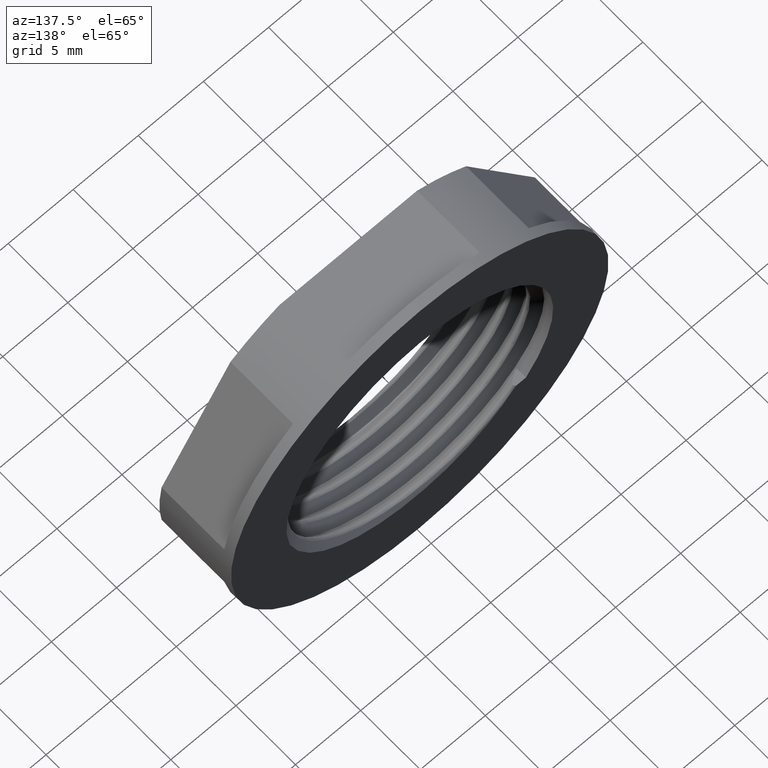
[diagram: clean part render]
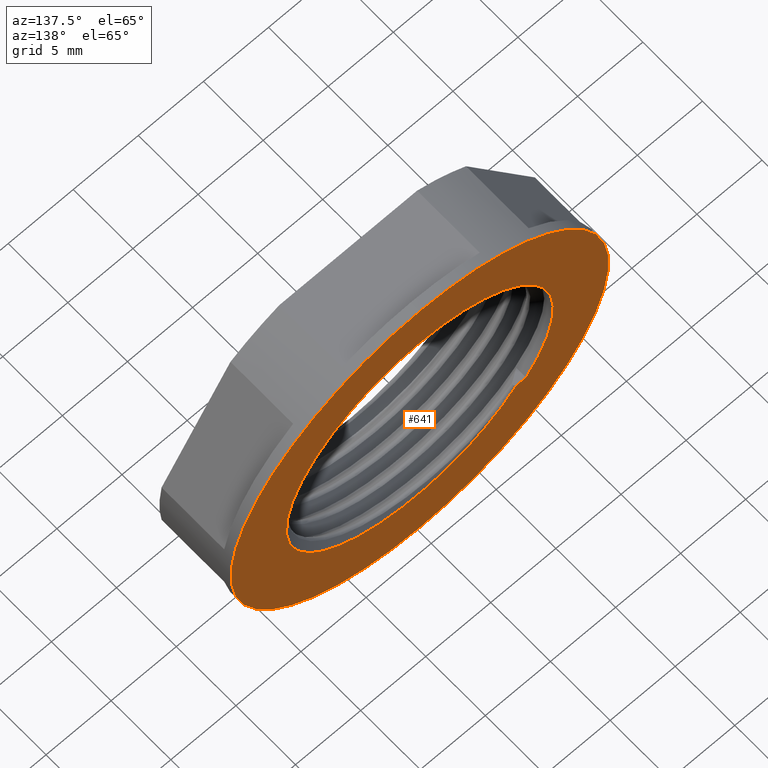
[diagram: same view with one face highlighted and labeled with its STEP entity id]
A machine part, auxiliary view. The second image highlights one B-rep face of the part: STEP entity #641.
In plain terms, the highlighted planar face has unit normal (0, -1, 0).
Its self-contained STEP definition (entity closure, byte-faithful):
#180 = PLANE ( 'NONE',  #1508 ) ;
#182 = FACE_OUTER_BOUND ( 'NONE', #666, .T. ) ;
#183 = DIRECTION ( 'NONE',  ( 0.0000000000000000000, -0.0000000000000000000, -1.000000000000000000 ) ) ;
#187 = CARTESIAN_POINT ( 'NONE',  ( 0.0000000000000000000, -10.95000000000000100, 10.25000000000000000 ) ) ;
#195 = CARTESIAN_POINT ( 'NONE',  ( 1.775737858763662000E-015, -10.95000000000000100, 14.50000000000000000 ) ) ;
#199 = DIRECTION ( 'NONE',  ( 0.0000000000000000000, -1.000000000000000000, 0.0000000000000000000 ) ) ;
#202 = FACE_BOUND ( 'NONE', #714, .T. ) ;
#206 = CARTESIAN_POINT ( 'NONE',  ( -8.162260716247670800, -10.95000000000000100, -6.200000000000003700 ) ) ;
#210 = CARTESIAN_POINT ( 'NONE',  ( 0.0000000000000000000, -10.95000000000000100, 0.0000000000000000000 ) ) ;
#244 = CARTESIAN_POINT ( 'NONE',  ( -7.404022937189631100, -10.95000000000000100, -6.200000000000002000 ) ) ;
#251 = CARTESIAN_POINT ( 'NONE',  ( 0.0000000000000000000, -10.95000000000000100, -14.50000000000000000 ) ) ;
#255 = CARTESIAN_POINT ( 'NONE',  ( 9.984966908751069100, -10.95000000000000100, -2.315801336718269300 ) ) ;
#539 = EDGE_CURVE ( 'NONE', #815, #739, #1426, .T. ) ;
#556 = EDGE_CURVE ( 'NONE', #755, #732, #1437, .T. ) ;
#568 = EDGE_CURVE ( 'NONE', #739, #815, #1464, .T. ) ;
#612 = EDGE_CURVE ( 'NONE', #762, #809, #2425, .T. ) ;
#614 = EDGE_CURVE ( 'NONE', #809, #755, #1751, .T. ) ;
#630 = EDGE_CURVE ( 'NONE', #732, #762, #1505, .T. ) ;
#641 = ADVANCED_FACE ( 'NONE', ( #182, #202 ), #180, .F. ) ;
#666 = EDGE_LOOP ( 'NONE', ( #886, #911 ) ) ;
#714 = EDGE_LOOP ( 'NONE', ( #893, #896, #877, #861 ) ) ;
#732 = VERTEX_POINT ( 'NONE', #187 ) ;
#739 = VERTEX_POINT ( 'NONE', #195 ) ;
#755 = VERTEX_POINT ( 'NONE', #206 ) ;
#762 = VERTEX_POINT ( 'NONE', #255 ) ;
#809 = VERTEX_POINT ( 'NONE', #244 ) ;
#815 = VERTEX_POINT ( 'NONE', #251 ) ;
#861 = ORIENTED_EDGE ( 'NONE', *, *, #614, .F. ) ;
#877 = ORIENTED_EDGE ( 'NONE', *, *, #556, .F. ) ;
#886 = ORIENTED_EDGE ( 'NONE', *, *, #539, .F. ) ;
#893 = ORIENTED_EDGE ( 'NONE', *, *, #612, .F. ) ;
#896 = ORIENTED_EDGE ( 'NONE', *, *, #630, .F. ) ;
#911 = ORIENTED_EDGE ( 'NONE', *, *, #568, .F. ) ;
#971 = CARTESIAN_POINT ( 'NONE',  ( 0.0000000000000000000, -10.95000000000000100, 0.0000000000000000000 ) ) ;
#988 = DIRECTION ( 'NONE',  ( 0.0000000000000000000, 0.0000000000000000000, -1.000000000000000000 ) ) ;
#998 = DIRECTION ( 'NONE',  ( -0.0000000000000000000, -1.000000000000000000, -0.0000000000000000000 ) ) ;
#1011 = DIRECTION ( 'NONE',  ( 0.0000000000000000000, 1.000000000000000000, 0.0000000000000000000 ) ) ;
#1013 = DIRECTION ( 'NONE',  ( 0.0000000000000000000, 0.0000000000000000000, 1.000000000000000000 ) ) ;
#1039 = CARTESIAN_POINT ( 'NONE',  ( 0.0000000000000000000, -10.95000000000000100, 0.0000000000000000000 ) ) ;
#1060 = DIRECTION ( 'NONE',  ( 0.0000000000000000000, 0.0000000000000000000, -1.000000000000000000 ) ) ;
#1063 = CARTESIAN_POINT ( 'NONE',  ( 0.0000000000000000000, -10.95000000000000100, 0.0000000000000000000 ) ) ;
#1091 = DIRECTION ( 'NONE',  ( -0.0000000000000000000, -1.000000000000000000, -0.0000000000000000000 ) ) ;
#1426 = CIRCLE ( 'NONE', #1431, 14.50000000000000000 ) ;
#1431 = AXIS2_PLACEMENT_3D ( 'NONE', #971, #998, #988 ) ;
#1437 = CIRCLE ( 'NONE', #1451, 10.25000000000000000 ) ;
#1451 = AXIS2_PLACEMENT_3D ( 'NONE', #1039, #1011, #1013 ) ;
#1464 = CIRCLE ( 'NONE', #1481, 14.50000000000000000 ) ;
#1481 = AXIS2_PLACEMENT_3D ( 'NONE', #1063, #1091, #1060 ) ;
#1505 = CIRCLE ( 'NONE', #1507, 10.25000000000000000 ) ;
#1507 = AXIS2_PLACEMENT_3D ( 'NONE', #1913, #1902, #1883 ) ;
#1508 = AXIS2_PLACEMENT_3D ( 'NONE', #210, #199, #183 ) ;
#1538 = VECTOR ( 'NONE', #1735, 1000.000000000000000 ) ;
#1715 = CARTESIAN_POINT ( 'NONE',  ( 9.984966908751069100, -10.95000000000000100, -2.315801336718269300 ) ) ;
#1716 = CARTESIAN_POINT ( 'NONE',  ( 9.164038182129434800, -10.95000000000000500, -4.475199812239592000 ) ) ;
#1717 = CARTESIAN_POINT ( 'NONE',  ( 2.917781006185225000, -10.95000000000000300, -9.543089336617743600 ) ) ;
#1718 = CARTESIAN_POINT ( 'NONE',  ( 0.1864503079351073600, -10.94999999999999600, -9.903601180782979800 ) ) ;
#1719 = CARTESIAN_POINT ( 'NONE',  ( 6.586577174987961100, -10.95000000000000300, -7.686211832296588200 ) ) ;
#1720 = CARTESIAN_POINT ( 'NONE',  ( -1.183187733089566600, -10.95000000000000500, -9.798567573064882900 ) ) ;
#1721 = CARTESIAN_POINT ( 'NONE',  ( 7.574290430061593900, -10.95000000000000300, -6.720052234631047000 ) ) ;
#1722 = CARTESIAN_POINT ( 'NONE',  ( 9.369250569222433700, -10.94999999999999000, -4.059865620938889900 ) ) ;
#1725 = CARTESIAN_POINT ( 'NONE',  ( 9.868256653003999900, -10.94999999999999900, -2.764802925638801600 ) ) ;
#1731 = CARTESIAN_POINT ( 'NONE',  ( 4.633649153253770700, -10.94999999999999600, -8.895100100355477900 ) ) ;
#1732 = CARTESIAN_POINT ( 'NONE',  ( 7.884506578068684500, -10.95000000000001400, -6.372258854795737700 ) ) ;
#1733 = CARTESIAN_POINT ( 'NONE',  ( -5.039208869022743000, -10.95000000000000100, -8.352159095131892000 ) ) ;
#1734 = CARTESIAN_POINT ( 'NONE',  ( 0.0000000000000000000, -10.95000000000000100, -6.200000000000002000 ) ) ;
#1735 = DIRECTION ( 'NONE',  ( -1.000000000000000000, -0.0000000000000000000, -0.0000000000000000000 ) ) ;
#1736 = CARTESIAN_POINT ( 'NONE',  ( 4.212697808611332000, -10.94999999999999900, -9.087844936330117900 ) ) ;
#1737 = CARTESIAN_POINT ( 'NONE',  ( -3.822685879874805300, -10.95000000000000100, -9.016551629331328100 ) ) ;
#1738 = CARTESIAN_POINT ( 'NONE',  ( -7.404022937189631100, -10.95000000000000100, -6.200000000000002000 ) ) ;
#1740 = CARTESIAN_POINT ( 'NONE',  ( 3.355819368385586400, -10.94999999999999900, -9.411254590556795900 ) ) ;
#1742 = CARTESIAN_POINT ( 'NONE',  ( -4.640404122661949200, -10.94999999999999900, -8.594986163531087800 ) ) ;
#1743 = CARTESIAN_POINT ( 'NONE',  ( -3.402081382343124200, -10.95000000000000100, -9.197062195810268300 ) ) ;
#1744 = CARTESIAN_POINT ( 'NONE',  ( -2.537732918569638700, -10.94999999999999800, -9.498444383241698900 ) ) ;
#1745 = CARTESIAN_POINT ( 'NONE',  ( 0.6441864500704888000, -10.94999999999999900, -9.896253871802558800 ) ) ;
#1749 = CARTESIAN_POINT ( 'NONE',  ( -0.7272396793052143800, -10.94999999999999900, -9.854861092439883000 ) ) ;
#1750 = CARTESIAN_POINT ( 'NONE',  ( 8.703769555141505500, -10.95000000000000300, -5.267949469616846500 ) ) ;
#1751 = LINE ( 'NONE', #1734, #1538 ) ;
#1753 = CARTESIAN_POINT ( 'NONE',  ( 5.851972985603990400, -10.94999999999999900, -8.230701511640790000 ) ) ;
#1761 = CARTESIAN_POINT ( 'NONE',  ( -6.162134665270798500, -10.94999999999999600, -7.554574359599755900 ) ) ;
#1763 = CARTESIAN_POINT ( 'NONE',  ( 9.721706823476170100, -10.94999999999999900, -3.203393592791244700 ) ) ;
#1764 = CARTESIAN_POINT ( 'NONE',  ( 1.561437586651030800, -10.95000000000000300, -9.818247150471416200 ) ) ;
#1767 = CARTESIAN_POINT ( 'NONE',  ( -6.827391387837837800, -10.94999999999999800, -6.927809336068057700 ) ) ;
#1768 = CARTESIAN_POINT ( 'NONE',  ( 2.022356808989509000, -10.95000000000000500, -9.746554429713810900 ) ) ;
#1769 = CARTESIAN_POINT ( 'NONE',  ( 8.447909775735100300, -10.95000000000001200, -5.647391911473544500 ) ) ;
#1770 = CARTESIAN_POINT ( 'NONE',  ( -2.093215281099436900, -10.95000000000000500, -9.619475611285119900 ) ) ;
#1883 = DIRECTION ( 'NONE',  ( 0.0000000000000000000, 0.0000000000000000000, 1.000000000000000000 ) ) ;
#1902 = DIRECTION ( 'NONE',  ( 0.0000000000000000000, 1.000000000000000000, 0.0000000000000000000 ) ) ;
#1913 = CARTESIAN_POINT ( 'NONE',  ( 0.0000000000000000000, -10.95000000000000100, 0.0000000000000000000 ) ) ;
#2425 = B_SPLINE_CURVE_WITH_KNOTS ( 'NONE', 3,
 ( #1715, #1725, #1763, #1722, #1716, #1750, #1769, #1732, #1721, #1719, #1753, #1731, #1736, #1740, #1717, #1768, #1764, #1745, #1718, #1749, #1720, #1770, #1744, #1743, #1737, #1742, #1733, #1761, #1767, #1738 ),
 .UNSPECIFIED., .F., .F.,
 ( 4, 2, 2, 2, 2, 2, 2, 2, 2, 2, 2, 2, 2, 2, 4 ),
 ( 2.168404344971008900E-018, 0.001387159495993797300, 0.002774318991987593600, 0.004161478487981389400, 0.005548637983975186400, 0.008322956975962777000, 0.009710116471956574100, 0.01109727596795036900, 0.01248443546394416800, 0.01387159495993796200, 0.01525875445593175700, 0.01664591395192555400, 0.01803307344791934800, 0.01942023294391314500, 0.02219455193590073900 ),
 .UNSPECIFIED. ) ;